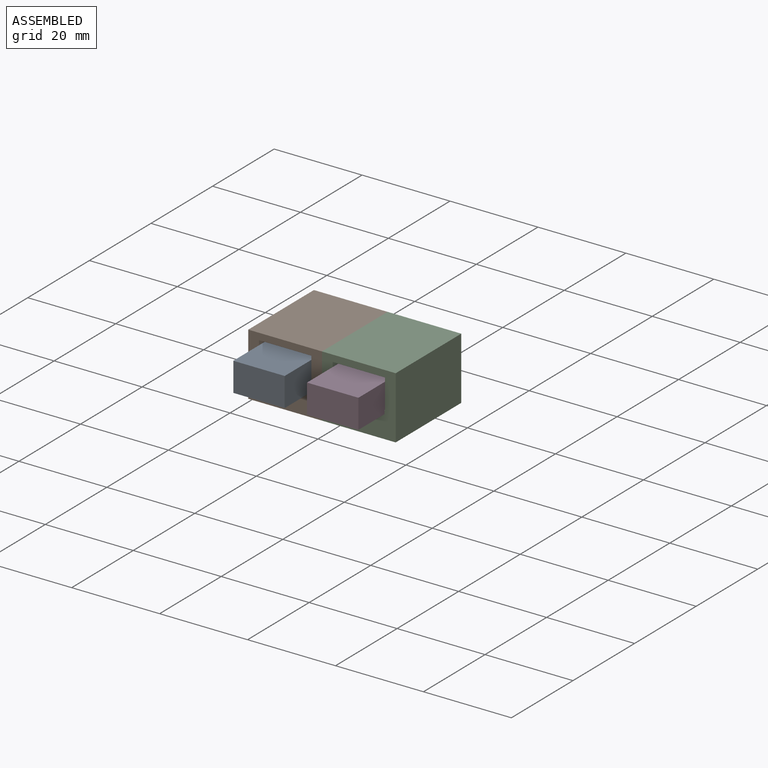
[diagram: assembled view]
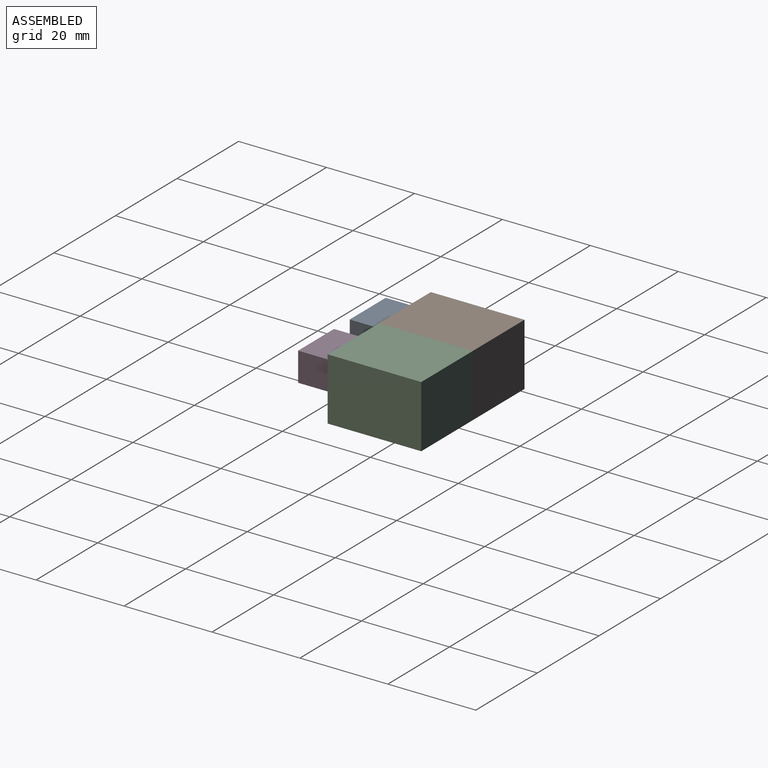
[diagram: assembled view, second angle]
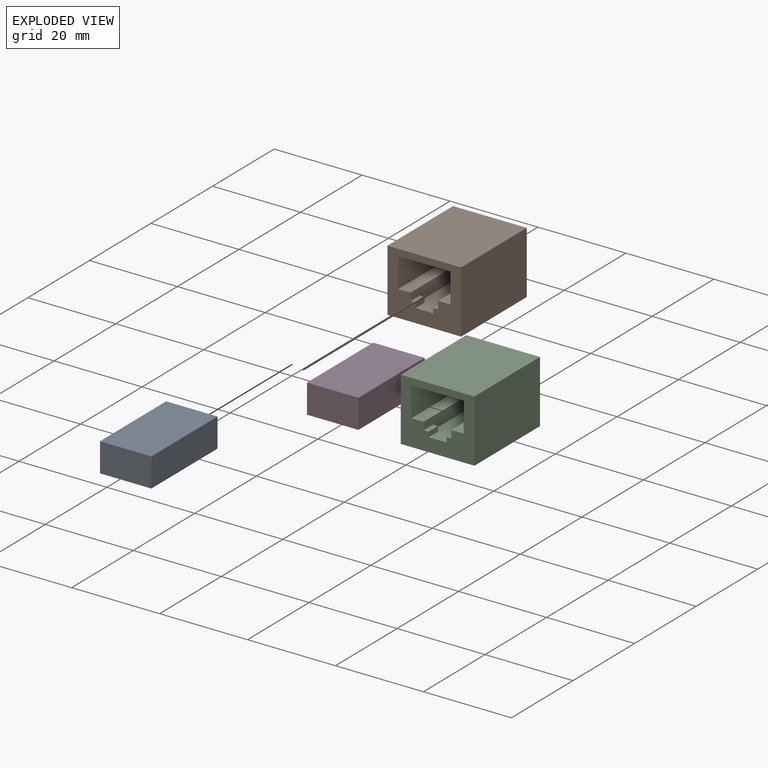
[diagram: exploded view]
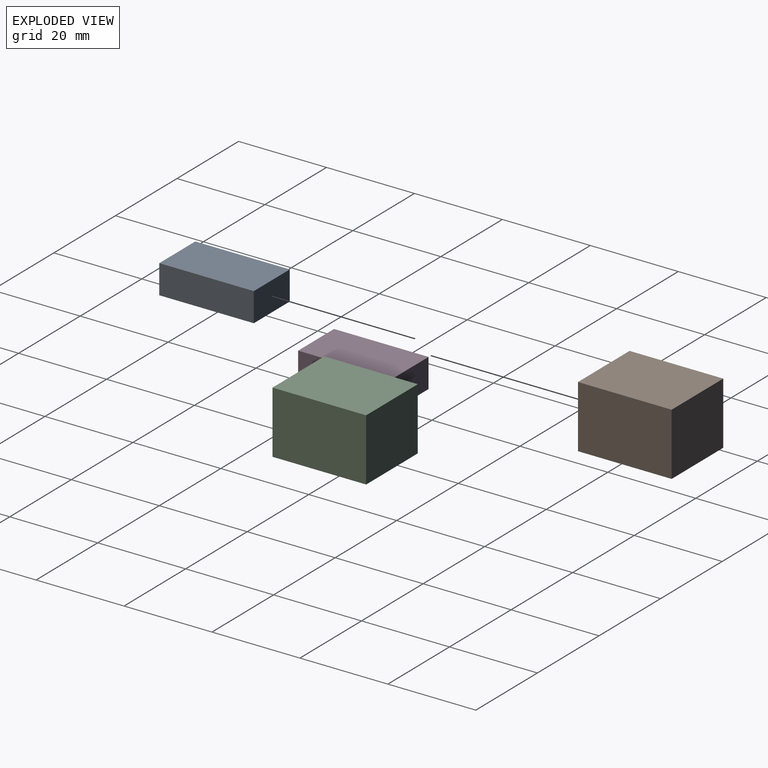
[diagram: exploded view, second angle]
ASSEMBLY  parts=4 mates=3
PART A: 6 faces, bbox 11.7x21.5x6.6 mm
  f0: plane 21.49x6.6mm, normal (-1,0,0), area 141.8mm2, adj f1,f3,f4,f5
  f1: plane 11.68x6.6mm, normal (0,-1,0), area 77.1mm2, adj f0,f2,f4,f5
  f2: plane 21.49x6.6mm, normal (1,0,0), area 141.8mm2, adj f1,f3,f4,f5
  f3: plane 11.68x6.6mm, normal (0,1,0), area 77.1mm2, adj f0,f2,f4,f5
  f4: plane 21.49x11.68mm, normal (0,0,1), area 251mm2, adj f0,f1,f2,f3
  f5: plane 21.49x11.68mm, normal (0,0,-1), area 251mm2, adj f0,f1,f2,f3
PART B: 21 faces, bbox 16.8x21.3x14.2 mm
  f0: plane 16.76x14.22mm, normal (0,-1,0), area 142.3mm2, adj f2,f3,f4,f5,f6,f7,f8,f9
  f1: plane 16.76x14.22mm, normal (0,1,0), area 238.3mm2, adj f2,f3,f4,f5
  f2: plane 21.3x14.22mm, normal (-1,0,0), area 302.9mm2, adj f0,f1,f4,f5
  f3: plane 21.3x14.22mm, normal (1,0,0), area 302.9mm2, adj f0,f1,f4,f5
  f4: plane 21.3x16.76mm, normal (0,0,1), area 357mm2, adj f0,f1,f2,f3
  f5: plane 21.3x16.76mm, normal (0,0,-1), area 357mm2, adj f0,f1,f2,f3
  f6: plane 13x2.81mm, normal (0,0,1), area 36.5mm2, adj f0,f7,f17,f19
  f7: plane 13x2.86mm, normal (1,0,0), area 33.8mm2, adj f0,f6,f8,f10,f19,f20
  f8: plane 3x1.12mm, normal (0,0,1), area 3.4mm2, adj f0,f7,f9,f20
  f9: plane 3x1.13mm, normal (1,0,0), area 3.4mm2, adj f0,f8,f10,f20
  f10: plane 13x6.3mm, normal (0,0,1), area 75.2mm2, adj f0,f7,f9,f11,f13,f18,f19,f20
  f11: plane 3x1.13mm, normal (-1,0,0), area 3.4mm2, adj f0,f10,f12,f18
  f12: plane 3x1.12mm, normal (0,0,1), area 3.4mm2, adj f0,f11,f13,f18
  f13: plane 13x2.86mm, normal (-1,0,0), area 33.8mm2, adj f0,f10,f12,f14,f18,f19
  f14: plane 13x2.81mm, normal (0,0,1), area 36.5mm2, adj f0,f13,f15,f19
  f15: plane 13x6.76mm, normal (-1,0,0), area 87.9mm2, adj f0,f14,f16,f19
  f16: plane 13x11.91mm, normal (0,0,-1), area 154.8mm2, adj f0,f15,f17,f19
  f17: plane 13x6.76mm, normal (1,0,0), area 87.9mm2, adj f0,f6,f16,f19
  f18: plane 1.13x1.12mm, normal (0,1,0), area 1.3mm2, adj f10,f11,f12,f13
  f19: plane 11.91x9.62mm, normal (0,-1,0), area 98.5mm2, adj f6,f7,f10,f13,f14,f15,f16,f17
  f20: plane 1.13x1.12mm, normal (0,1,0), area 1.3mm2, adj f7,f8,f9,f10
PART C: same geometry as B
PART D: same geometry as A
PLACE A t=(-51.53,-11.93,-11.63)mm
PLACE B t=(-51.53,-3.54,-16.77)mm
PLACE C t=(-34.77,-3.54,-16.77)mm
PLACE D t=(-34.77,-11.93,-11.63)mm
MATE slider D.f3 <-> C.f19  axis (0,1,0) through (-34.77,-1.19,-8.33)mm
MATE slider A.f3 <-> B.f19  axis (0,1,0) through (-51.53,-1.19,-8.33)mm
MATE fastened B.f3 <-> C.f2  axis (1,0,0) through (-43.15,-3.54,-9.66)mm
